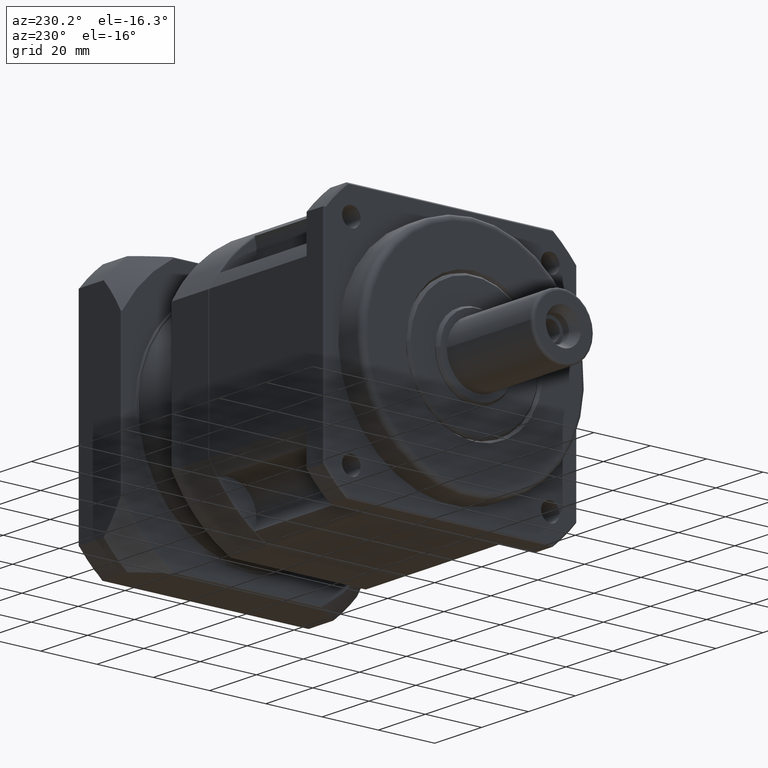
[diagram: clean part render]
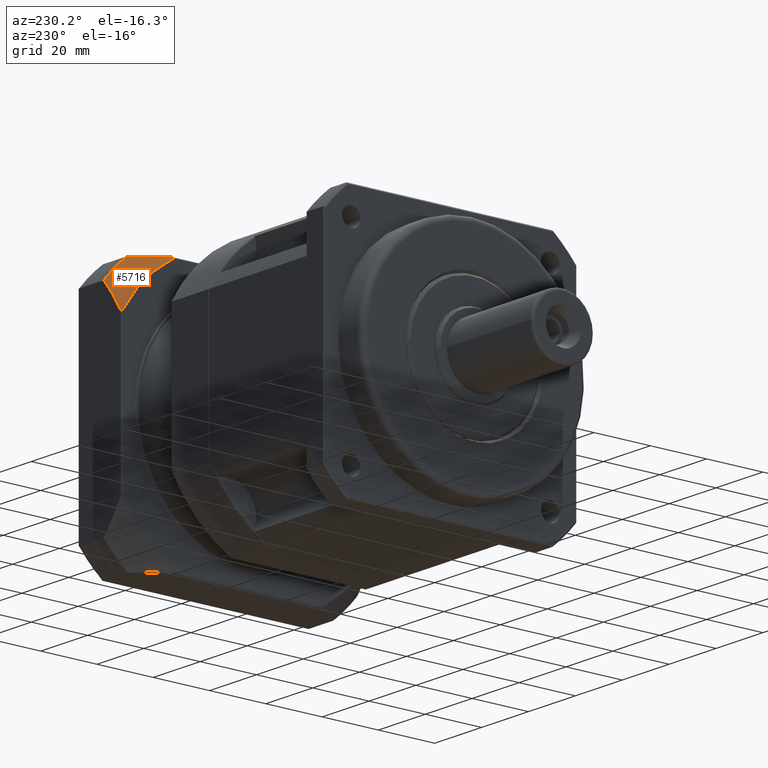
[diagram: same view with one face highlighted and labeled with its STEP entity id]
A machine part, auxiliary view. The second image highlights one B-rep face of the part: STEP entity #5716.
In plain terms, the highlighted spherical surface has radius 71 mm.
Its self-contained STEP definition (entity closure, byte-faithful):
#26=B_SPLINE_CURVE_WITH_KNOTS('',3,(#8959,#8960,#8961,#8962,#8963,#8964,
#8965,#8966,#8967,#8968,#8969,#8970,#8971,#8972,#8973,#8974,#8975,#8976,
#8977),.UNSPECIFIED.,.F.,.F.,(4,2,2,2,3,2,2,2,4),(-0.0516311688356982,-0.0359456465529046,
-0.0132459338235235,-0.00662296691176179,0.,0.0101172394984022,0.0202344789968044,
0.0404689579936087,0.0570529004931127),.UNSPECIFIED.);
#27=B_SPLINE_CURVE_WITH_KNOTS('',3,(#8981,#8982,#8983,#8984,#8985,#8986,
#8987,#8988,#8989,#8990,#8991,#8992,#8993,#8994,#8995,#8996,#8997,#8998,
#8999),.UNSPECIFIED.,.F.,.F.,(4,2,2,2,3,2,2,2,4),(-0.0570529004931125,-0.0404689579936092,
-0.0202344789968045,-0.0101172394984023,0.,0.00662296691176066,0.0132459338235213,
0.0359456465529062,0.0516311688356997),.UNSPECIFIED.);
#88=SPHERICAL_SURFACE('',#6188,71.);
#1232=FACE_OUTER_BOUND('',#1671,.T.);
#1671=EDGE_LOOP('',(#3975,#3976,#3977,#3978,#3979,#3980));
#2177=CIRCLE('',#6189,51.8531580523308);
#2178=CIRCLE('',#6190,54.9181208709839);
#2179=CIRCLE('',#6191,58.);
#2180=CIRCLE('',#6192,54.9181208709839);
#2563=VERTEX_POINT('',#8957);
#2564=VERTEX_POINT('',#8958);
#2565=VERTEX_POINT('',#8978);
#2566=VERTEX_POINT('',#8980);
#2567=VERTEX_POINT('',#9000);
#2568=VERTEX_POINT('',#9002);
#3120=EDGE_CURVE('',#2563,#2564,#26,.T.);
#3121=EDGE_CURVE('',#2565,#2563,#2177,.T.);
#3122=EDGE_CURVE('',#2566,#2565,#27,.T.);
#3123=EDGE_CURVE('',#2567,#2566,#2178,.T.);
#3124=EDGE_CURVE('',#2568,#2567,#2179,.T.);
#3125=EDGE_CURVE('',#2564,#2568,#2180,.T.);
#3975=ORIENTED_EDGE('',*,*,#3120,.F.);
#3976=ORIENTED_EDGE('',*,*,#3121,.F.);
#3977=ORIENTED_EDGE('',*,*,#3122,.F.);
#3978=ORIENTED_EDGE('',*,*,#3123,.F.);
#3979=ORIENTED_EDGE('',*,*,#3124,.F.);
#3980=ORIENTED_EDGE('',*,*,#3125,.F.);
#5716=ADVANCED_FACE('',(#1232),#88,.T.);
#6188=AXIS2_PLACEMENT_3D('',#8956,#7119,#7120);
#6189=AXIS2_PLACEMENT_3D('',#8979,#7121,#7122);
#6190=AXIS2_PLACEMENT_3D('',#9001,#7123,#7124);
#6191=AXIS2_PLACEMENT_3D('',#9003,#7125,#7126);
#6192=AXIS2_PLACEMENT_3D('',#9004,#7127,#7128);
#7119=DIRECTION('center_axis',(-5.20397496613031E-15,6.00458649938113E-16,
-1.));
#7120=DIRECTION('ref_axis',(1.,1.50114662484528E-15,-5.27903229737258E-15));
#7121=DIRECTION('center_axis',(-1.,-1.45660120077612E-15,5.27608953374165E-15));
#7122=DIRECTION('ref_axis',(5.27608953374165E-15,-5.94793311827521E-16,
1.));
#7123=DIRECTION('center_axis',(5.27608953374165E-15,-7.92166293983104E-16,
1.));
#7124=DIRECTION('ref_axis',(-1.45660120077612E-15,1.,7.92166293983112E-16));
#7125=DIRECTION('center_axis',(1.,1.45660120077612E-15,-5.27608953374165E-15));
#7126=DIRECTION('ref_axis',(-5.27608953374165E-15,5.94793311827521E-16,
-1.));
#7127=DIRECTION('center_axis',(-1.45660120077612E-15,1.,6.9347980290532E-16));
#7128=DIRECTION('ref_axis',(-5.27608953374165E-15,6.93479802905312E-16,
-1.));
#8956=CARTESIAN_POINT('Origin',(74.9702896556817,-32.3933275789246,10.8503877548306));
#8957=CARTESIAN_POINT('',(26.4702896556818,12.1066724210753,37.4680510632433));
#8958=CARTESIAN_POINT('',(26.9702896556818,12.6066724210753,37.5337158830836));
#8959=CARTESIAN_POINT('Ctrl Pts',(26.4702896556818,12.1066724210753,37.4680510632433));
#8960=CARTESIAN_POINT('Ctrl Pts',(26.4702896556818,12.1343704248643,37.4217449260618));
#8961=CARTESIAN_POINT('Ctrl Pts',(26.472527002535,12.163355594928,37.3771993972607));
#8962=CARTESIAN_POINT('Ctrl Pts',(26.4859402063065,12.2388063899648,37.274736396822));
#8963=CARTESIAN_POINT('Ctrl Pts',(26.5034339530054,12.2974371241585,37.2076481179479));
#8964=CARTESIAN_POINT('Ctrl Pts',(26.5456704486167,12.3713768581876,37.1596632804524));
#8965=CARTESIAN_POINT('Ctrl Pts',(26.5576874858428,12.3900387239425,37.1500192198388));
#8966=CARTESIAN_POINT('Ctrl Pts',(26.5854431776852,12.4266930510535,37.1386540250918));
#8967=CARTESIAN_POINT('Ctrl Pts',(26.6011945020386,12.4446840486187,37.1369591303534));
#8968=CARTESIAN_POINT('Ctrl Pts',(26.6167362650885,12.4602258116686,37.1390283195357));
#8969=CARTESIAN_POINT('Ctrl Pts',(26.6404778511629,12.4839673977429,37.1421892114448));
#8970=CARTESIAN_POINT('Ctrl Pts',(26.6641296158073,12.5030132666306,37.1531354166996));
#8971=CARTESIAN_POINT('Ctrl Pts',(26.7110716975769,12.5351635953061,37.1843889047012));
#8972=CARTESIAN_POINT('Ctrl Pts',(26.7343542112004,12.5482261589626,37.2047509679809));
#8973=CARTESIAN_POINT('Ctrl Pts',(26.8027483492444,12.5804555246739,37.2748370706442));
#8974=CARTESIAN_POINT('Ctrl Pts',(26.8460836320392,12.5924577924347,37.3332965524729));
#8975=CARTESIAN_POINT('Ctrl Pts',(26.913471493806,12.6043891015685,37.4351724550252));
#8976=CARTESIAN_POINT('Ctrl Pts',(26.9424230305177,12.6066724210753,37.4835872783815));
#8977=CARTESIAN_POINT('Ctrl Pts',(26.9702896556818,12.6066724210753,37.5337158830836));
#8978=CARTESIAN_POINT('',(26.4702896556819,-5.77566427051237,55.3503877548309));
#8979=CARTESIAN_POINT('Origin',(26.4702896556817,-32.3933275789247,10.8503877548309));
#8980=CARTESIAN_POINT('',(26.9702896556819,-5.70999945067203,55.8503877548309));
#8981=CARTESIAN_POINT('Ctrl Pts',(26.9702896556819,-5.70999945067203,55.8503877548309));
#8982=CARTESIAN_POINT('Ctrl Pts',(26.9424230305178,-5.76012805537415,55.8503877548309));
#8983=CARTESIAN_POINT('Ctrl Pts',(26.9134714938061,-5.80854287873039,55.8481044353241));
#8984=CARTESIAN_POINT('Ctrl Pts',(26.8460836320394,-5.91041878128272,55.8361731261903));
#8985=CARTESIAN_POINT('Ctrl Pts',(26.8027483492446,-5.96887826311149,55.8241708584295));
#8986=CARTESIAN_POINT('Ctrl Pts',(26.7343542112005,-6.03896436577479,55.7919414927183));
#8987=CARTESIAN_POINT('Ctrl Pts',(26.711071697577,-6.05932642905446,55.7788789290617));
#8988=CARTESIAN_POINT('Ctrl Pts',(26.6641296158075,-6.09057991705603,55.7467286003862));
#8989=CARTESIAN_POINT('Ctrl Pts',(26.640477851163,-6.10152612231087,55.7276827314986));
#8990=CARTESIAN_POINT('Ctrl Pts',(26.6167362650886,-6.10468701421989,55.7039411454242));
#8991=CARTESIAN_POINT('Ctrl Pts',(26.6011945020388,-6.10675620340222,55.6883993823743));
#8992=CARTESIAN_POINT('Ctrl Pts',(26.5854431776853,-6.10506130866387,55.6704083848092));
#8993=CARTESIAN_POINT('Ctrl Pts',(26.5576874858429,-6.09369611391685,55.6337540576981));
#8994=CARTESIAN_POINT('Ctrl Pts',(26.5456704486168,-6.08405205330332,55.6150921919433));
#8995=CARTESIAN_POINT('Ctrl Pts',(26.5034339530055,-6.03606721580777,55.5411524579141));
#8996=CARTESIAN_POINT('Ctrl Pts',(26.4859402063066,-5.96897893693365,55.4825217237204));
#8997=CARTESIAN_POINT('Ctrl Pts',(26.4725270025351,-5.86651593649495,55.4070709286836));
#8998=CARTESIAN_POINT('Ctrl Pts',(26.4702896556819,-5.82197040769383,55.3780857586199));
#8999=CARTESIAN_POINT('Ctrl Pts',(26.4702896556819,-5.77566427051237,55.3503877548309));
#9000=CARTESIAN_POINT('',(34.0190991967954,4.19902134813929,55.8503877548309));
#9001=CARTESIAN_POINT('Origin',(74.970289655682,-32.3933275789246,55.8503877548306));
#9002=CARTESIAN_POINT('',(34.0190991967953,12.6066724210753,47.4427366818949));
#9003=CARTESIAN_POINT('Origin',(34.0190991967952,-32.3933275789247,10.8503877548309));
#9004=CARTESIAN_POINT('Origin',(74.9702896556817,12.6066724210754,10.8503877548307));